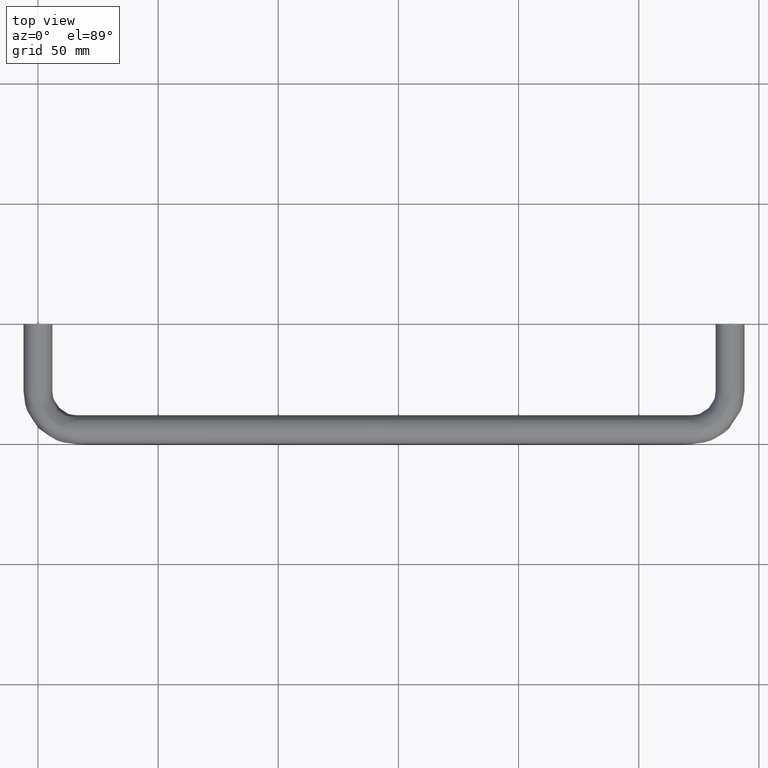
[diagram: clean part render]
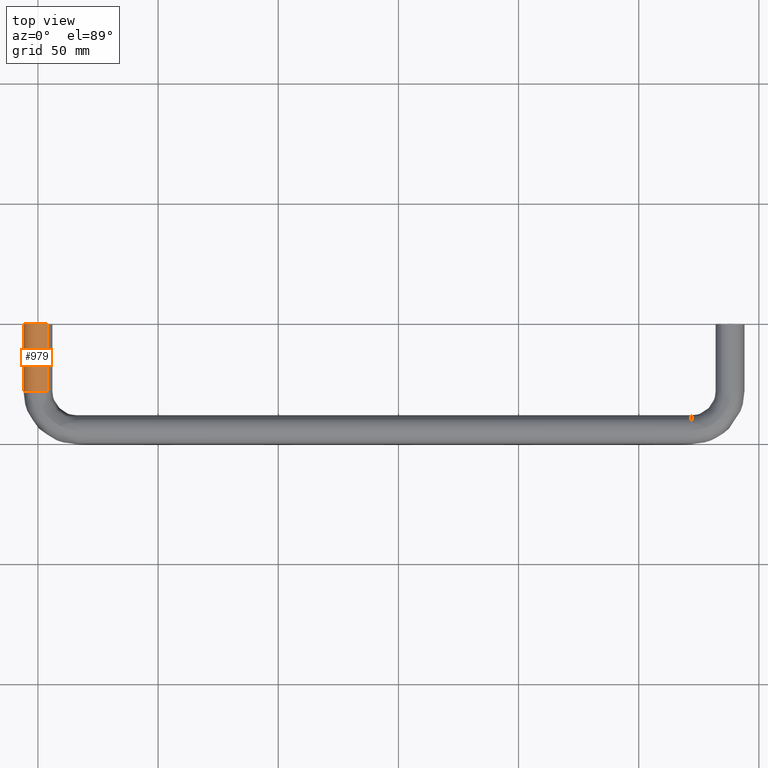
[diagram: same view with one face highlighted and labeled with its STEP entity id]
A machine part, top view. The second image highlights one B-rep face of the part: STEP entity #979.
In plain terms, the highlighted face is a freeform B-spline surface patch.
Its self-contained STEP definition (entity closure, byte-faithful):
#866=CARTESIAN_POINT('',(3.735087819825715,0.700000000167416,4.695648941114483));
#867=CARTESIAN_POINT('',(-0.960561121288767,0.700000000167416,8.430736760940198));
#868=CARTESIAN_POINT('',(-4.695648941114483,0.700000000167415,3.735087819825715));
#869=CARTESIAN_POINT('',(-8.430736760940198,0.700000000167415,-0.960561121288767));
#870=CARTESIAN_POINT('',(-3.735087819825715,0.700000000167415,-4.695648941114483));
#871=CARTESIAN_POINT('',(3.735087819825719,-28.717500006868171,4.695648941114483));
#872=CARTESIAN_POINT('',(-0.960561121288764,-28.717500006868171,8.430736760940198));
#873=CARTESIAN_POINT('',(-4.695648941114479,-28.717500006868171,3.735087819825715));
#874=CARTESIAN_POINT('',(-8.430736760940194,-28.717500006868171,-0.960561121288767));
#875=CARTESIAN_POINT('',(-3.735087819825712,-28.717500006868171,-4.695648941114483));
#883=(BOUNDED_SURFACE()B_SPLINE_SURFACE(2,1,((#866,#871),(#867,#872),(#868,#873),(#869,#874),(#870,#875)),.UNSPECIFIED.,.F.,.F.,.U.)B_SPLINE_SURFACE_WITH_KNOTS((3,2,3),(2,2),(0.0,9.941125496954278,19.882250993908560),(0.0,29.417500007035589),.UNSPECIFIED.)GEOMETRIC_REPRESENTATION_ITEM()RATIONAL_B_SPLINE_SURFACE(((1.0,1.0),(0.707106781186548,0.707106781186548),(1.0,1.0),(0.707106781186548,0.707106781186548),(1.0,1.0)))REPRESENTATION_ITEM('')SURFACE());
#884=CARTESIAN_POINT('',(-0.075396270194108,-28.000000006696570,5.999526264834650));
#885=VERTEX_POINT('',#884);
#886=CARTESIAN_POINT('',(3.735087819832142,-28.0,4.695648941109376));
#887=VERTEX_POINT('',#886);
#888=CARTESIAN_POINT('',(-0.075396270194108,-28.000000006696574,5.999526264834650));
#889=CARTESIAN_POINT('',(-0.037699638848994,-27.999999999999996,5.999999999999999));
#890=CARTESIAN_POINT('',(3.428898E-015,-28.0,6.0));
#891=CARTESIAN_POINT('',(2.095293800538441,-28.000000000000004,6.0));
#892=CARTESIAN_POINT('',(3.735087819832142,-28.000000000000004,4.695648941109376));
#900=(BOUNDED_CURVE()B_SPLINE_CURVE(2,(#888,#889,#890,#891,#892),.UNSPECIFIED.,.F.,.U.)B_SPLINE_CURVE_WITH_KNOTS((3,2,3),(0.747784294110506,0.750000000000000,0.857863877391859),.UNSPECIFIED.)CURVE()GEOMETRIC_REPRESENTATION_ITEM()RATIONAL_B_SPLINE_CURVE((0.994854291475282,0.997404139080329,1.0,0.873629607027995,0.856305618643937))REPRESENTATION_ITEM(''));
#901=EDGE_CURVE('',#885,#887,#900,.T.);
#902=ORIENTED_EDGE('',*,*,#901,.T.);
#903=CARTESIAN_POINT('',(3.735087819830100,0.0,4.695648941110996));
#904=VERTEX_POINT('',#903);
#905=CARTESIAN_POINT('',(3.735087819830100,0.0,4.695648941110996));
#906=CARTESIAN_POINT('',(3.735087819832142,-28.0,4.695648941109376));
#907=QUASI_UNIFORM_CURVE('',1,(#905,#906),.UNSPECIFIED.,.F.,.U.);
#908=EDGE_CURVE('',#904,#887,#907,.T.);
#909=ORIENTED_EDGE('',*,*,#908,.F.);
#910=CARTESIAN_POINT('',(-6.0,0.0,0.0));
#911=VERTEX_POINT('',#910);
#912=CARTESIAN_POINT('',(-6.0,0.0,0.0));
#913=CARTESIAN_POINT('',(-6.0,0.0,6.0));
#914=CARTESIAN_POINT('',(0.0,0.0,6.0));
#915=CARTESIAN_POINT('',(2.095293800535537,0.0,6.0));
#916=CARTESIAN_POINT('',(3.735087819830100,0.0,4.695648941110996));
#924=(BOUNDED_CURVE()B_SPLINE_CURVE(2,(#912,#913,#914,#915,#916),.UNSPECIFIED.,.F.,.U.)B_SPLINE_CURVE_WITH_KNOTS((3,2,3),(0.500000000000000,0.750000000000000,0.857863877391729),.UNSPECIFIED.)CURVE()GEOMETRIC_REPRESENTATION_ITEM()RATIONAL_B_SPLINE_CURVE((1.0,0.707106781186548,1.0,0.873629607028148,0.856305618643979))REPRESENTATION_ITEM(''));
#925=EDGE_CURVE('',#911,#904,#924,.T.);
#926=ORIENTED_EDGE('',*,*,#925,.F.);
#927=CARTESIAN_POINT('',(-3.735087819830101,1.110223E-015,-4.695648941110996));
#928=VERTEX_POINT('',#927);
#929=CARTESIAN_POINT('',(-3.735087819830101,1.110223E-015,-4.695648941110997));
#930=CARTESIAN_POINT('',(-6.000000000000002,0.0,-2.894056444898517));
#931=CARTESIAN_POINT('',(-6.0,0.0,0.0));
#939=(BOUNDED_CURVE()B_SPLINE_CURVE(2,(#929,#930,#931),.UNSPECIFIED.,.F.,.U.)B_SPLINE_CURVE_WITH_KNOTS((3,3),(0.357863877391728,0.500000000000000),.UNSPECIFIED.)CURVE()GEOMETRIC_REPRESENTATION_ITEM()RATIONAL_B_SPLINE_CURVE((0.856305618643979,0.833477174158399,1.0))REPRESENTATION_ITEM(''));
#940=EDGE_CURVE('',#928,#911,#939,.T.);
#941=ORIENTED_EDGE('',*,*,#940,.F.);
#942=CARTESIAN_POINT('',(-3.735087819832132,-28.0,-4.695648941109377));
#943=VERTEX_POINT('',#942);
#944=CARTESIAN_POINT('',(-3.735087819830101,1.110223E-015,-4.695648941110996));
#945=CARTESIAN_POINT('',(-3.735087819832132,-28.0,-4.695648941109377));
#946=QUASI_UNIFORM_CURVE('',1,(#944,#945),.UNSPECIFIED.,.F.,.U.);
#947=EDGE_CURVE('',#928,#943,#946,.T.);
#948=ORIENTED_EDGE('',*,*,#947,.T.);
#949=CARTESIAN_POINT('',(-5.999999999999996,-28.0,0.0));
#950=VERTEX_POINT('',#949);
#951=CARTESIAN_POINT('',(-3.735087819832132,-28.000000000000004,-4.695648941109377));
#952=CARTESIAN_POINT('',(-5.999999999999996,-27.999999999999996,-2.894056444895313));
#953=CARTESIAN_POINT('',(-5.999999999999996,-28.0,0.0));
#961=(BOUNDED_CURVE()B_SPLINE_CURVE(2,(#951,#952,#953),.UNSPECIFIED.,.F.,.U.)B_SPLINE_CURVE_WITH_KNOTS((3,3),(0.357863877391859,0.500000000000000),.UNSPECIFIED.)CURVE()GEOMETRIC_REPRESENTATION_ITEM()RATIONAL_B_SPLINE_CURVE((0.856305618643937,0.833477174158553,1.0))REPRESENTATION_ITEM(''));
#962=EDGE_CURVE('',#943,#950,#961,.T.);
#963=ORIENTED_EDGE('',*,*,#962,.T.);
#964=CARTESIAN_POINT('',(-5.999999999999996,-28.0,0.0));
#965=CARTESIAN_POINT('',(-5.999999999999996,-28.0,5.925071518417884));
#966=CARTESIAN_POINT('',(-0.075396270194108,-28.000000006696574,5.999526264834650));
#974=(BOUNDED_CURVE()B_SPLINE_CURVE(2,(#964,#965,#966),.UNSPECIFIED.,.F.,.U.)B_SPLINE_CURVE_WITH_KNOTS((3,3),(0.500000000000000,0.747784294110507),.UNSPECIFIED.)CURVE()GEOMETRIC_REPRESENTATION_ITEM()RATIONAL_B_SPLINE_CURVE((1.0,0.709702642106218,0.994854291475283))REPRESENTATION_ITEM(''));
#975=EDGE_CURVE('',#950,#885,#974,.T.);
#976=ORIENTED_EDGE('',*,*,#975,.T.);
#977=EDGE_LOOP('',(#902,#909,#926,#941,#948,#963,#976));
#978=FACE_OUTER_BOUND('',#977,.T.);
#979=ADVANCED_FACE('',(#978),#883,.T.);